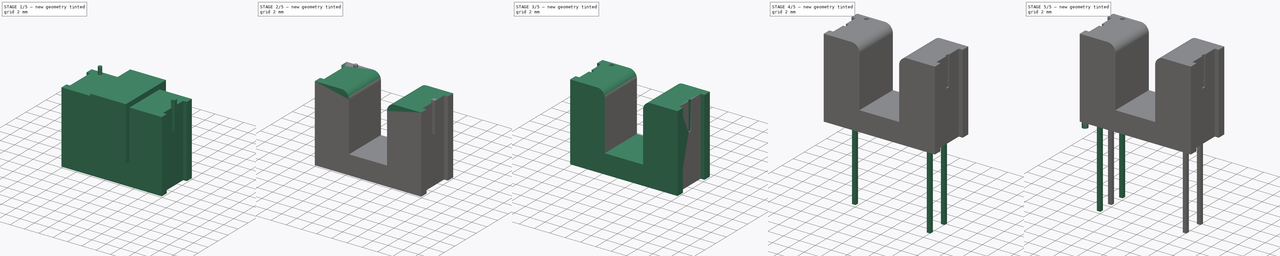
[diagram: build sequence overview — one tinted view per stage of 5, left to right]
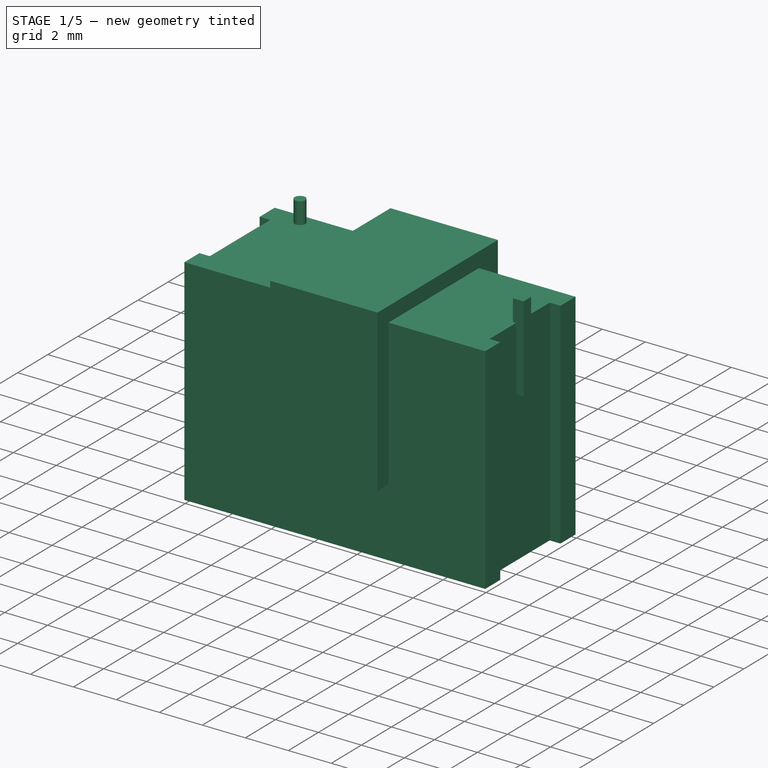
[diagram: stage 1 of 5 — iso view after this stage's code; geometry added in this stage tinted green]
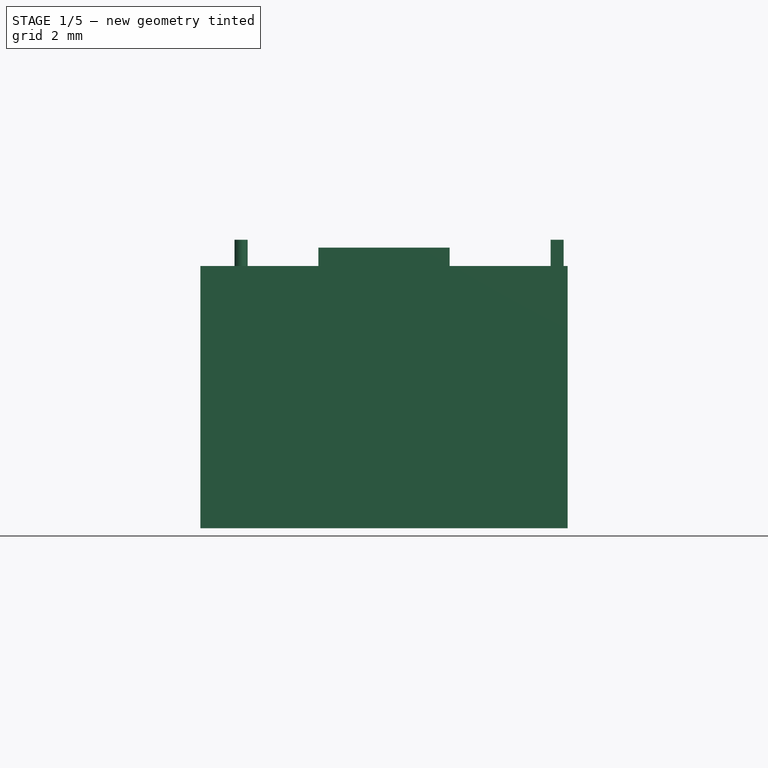
[diagram: stage 1 of 5 — front view after this stage's code; geometry added in this stage tinted green]
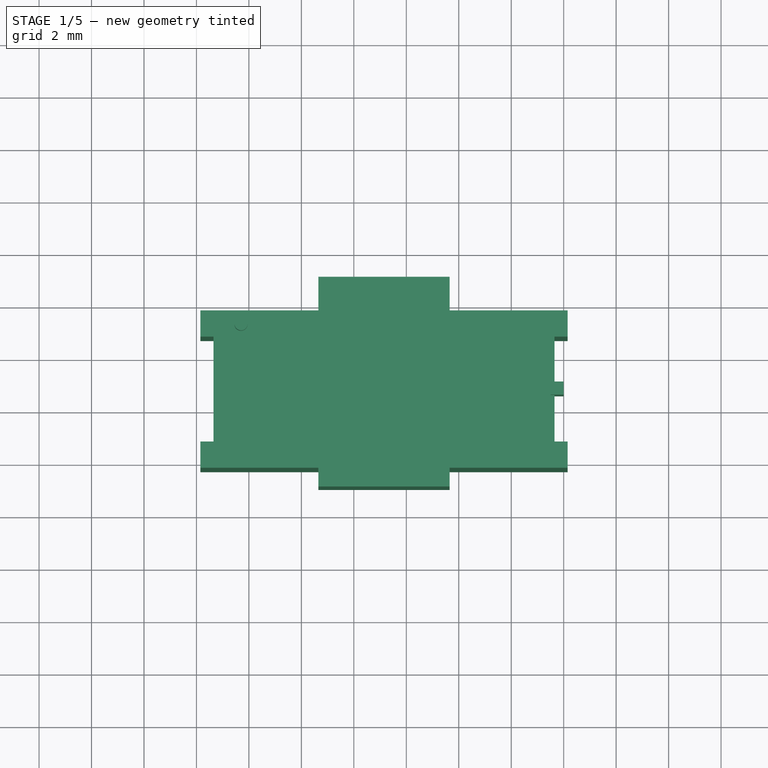
[diagram: stage 1 of 5 — top view after this stage's code; geometry added in this stage tinted green]
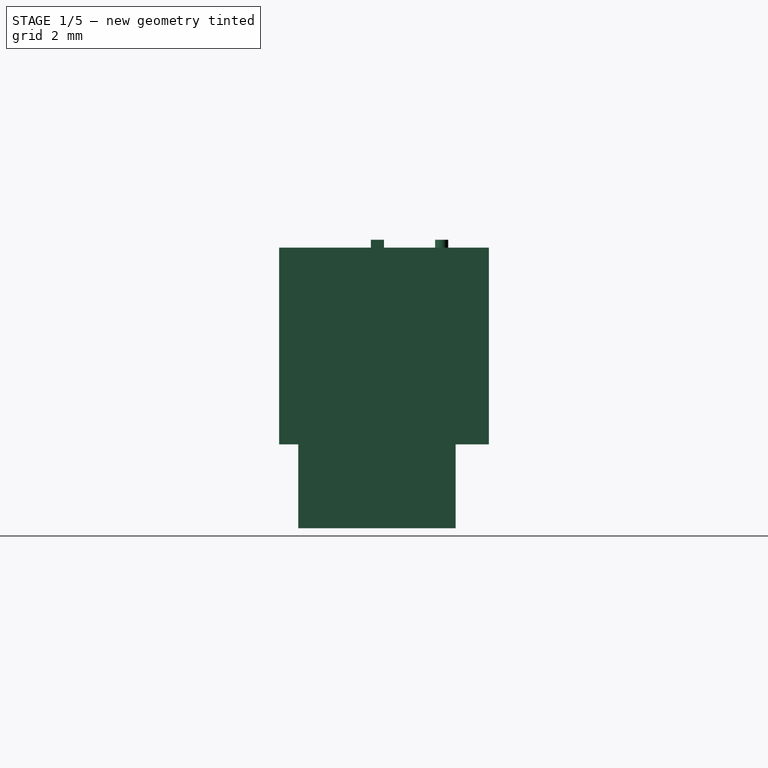
[diagram: stage 1 of 5 — right view after this stage's code; geometry added in this stage tinted green]
FCSTD DOCUMENT  (FreeCAD 0.17R11223 (Git))
Label: LG206D_06
License: All rights reserved
LicenseURL: http://en.wikipedia.org/wiki/All_rights_reserved
objects: Part::Box×8, Part::Cut×4, Part::Cylinder×3, Part::Fillet×2, Sketcher::SketchObject×1, PartDesign::Pad×1, PartDesign::Body×1
note: 21 computed .brp shape members not serialized (recipe doc carries the construction recipe); baked Part::Feature solids carry a one-line shape summary decoded from their .brp

FEATURE [Sketcher::SketchObject] Sketch
  MapMode = 5
  Support = -> [XY_Plane]
  sketch-geometry (12):
    g0: LineSegment StartX=-1.85 StartY=1.73 StartZ=0 EndX=12.15 EndY=1.73 EndZ=0
    g1: LineSegment StartX=12.15 StartY=1.73 StartZ=0 EndX=12.15 EndY=0.73 EndZ=0
    g2: LineSegment StartX=12.15 StartY=0.73 StartZ=0 EndX=11.65 EndY=0.73 EndZ=0
    g3: LineSegment StartX=11.65 StartY=0.73 StartZ=0 EndX=11.65 EndY=-3.27 EndZ=0
    g4: LineSegment StartX=11.65 StartY=-3.27 StartZ=0 EndX=12.15 EndY=-3.27 EndZ=0
    g5: LineSegment StartX=12.15 StartY=-3.27 StartZ=0 EndX=12.15 EndY=-4.27 EndZ=0
    g6: LineSegment StartX=12.15 StartY=-4.27 StartZ=0 EndX=-1.85 EndY=-4.27 EndZ=0
    g7: LineSegment StartX=-1.85 StartY=-4.27 StartZ=0 EndX=-1.85 EndY=-3.27 EndZ=0
    g8: LineSegment StartX=-1.85 StartY=-3.27 StartZ=0 EndX=-1.35 EndY=-3.27 EndZ=0
    g9: LineSegment StartX=-1.35 StartY=-3.27 StartZ=0 EndX=-1.35 EndY=0.73 EndZ=0
    g10: LineSegment StartX=-1.35 StartY=0.73 StartZ=0 EndX=-1.85 EndY=0.73 EndZ=0
    g11: LineSegment StartX=-1.85 StartY=0.73 StartZ=0 EndX=-1.85 EndY=1.73 EndZ=0
  constraints (36):
    c: Horizontal(g0)
    c: Coincident(g0,g1)
    c: Vertical(g1)
    c: Coincident(g1,g2)
    c: Horizontal(g2)
    c: Coincident(g2,g3)
    c: Vertical(g3)
    c: Coincident(g3,g4)
    c: Horizontal(g4)
    c: Coincident(g4,g5)
    c: Vertical(g5)
    c: Coincident(g5,g6)
    c: Horizontal(g6)
    c: Coincident(g6,g7)
    c: Vertical(g7)
    c: Coincident(g7,g8)
    c: Horizontal(g8)
    c: Coincident(g8,g9)
    c: Vertical(g9)
    c: Coincident(g9,g10)
    c: Horizontal(g10)
    c: Coincident(g10,g11)
    c: Coincident(g11,g0)
    c: Vertical(g11)
    c: DistanceX(g0,g0) = 14
    c: DistanceX(g10,g9) = 0.5
    c: DistanceX(g7,g8) = 0.5
    c: DistanceX(g2,g1) = 0.5
    c: DistanceX(g3,g4) = 0.5
    c: DistanceY(g6,g0) = 6
    c: DistanceY(g10,g0) = 1
    c: DistanceY(g6,g7) = 1
    c: DistanceY(g1,g0) = 1
    c: DistanceY(g5,g4) = 1
    c: DistanceX(g0,g-1) = 1.85
    c: DistanceY(g-1,g0) = 1.73
FEATURE [PartDesign::Pad] Pad
  Length = 10
  Length2 = 100
  Offset = 1
  Profile = -> Sketch
  Type = 0
FEATURE [Part::Box] Box005  label="Kub005"
  AttacherType = Attacher::AttachEngine3D
  Height = 7.5
  Length = 5
  Placement = pos=(2.65,-5,3.2) rot=(0,0,1;0rad)
  Width = 8
FEATURE [Part::Box] Box007  label="Kub007"
  AttacherType = Attacher::AttachEngine3D
  Height = 4
  Length = 0.5
  Placement = pos=(11.5,-1.5,7) rot=(0,0,1;0rad)
  Width = 0.5
FEATURE [Part::Cylinder] Cylinder002  label="VCC marking"
  Angle = 360
  AttacherType = Attacher::AttachEngine3D
  Height = 1
  Placement = pos=(-0.3,1.2,10) rot=(0,0,1;0rad)
  Radius = 0.25
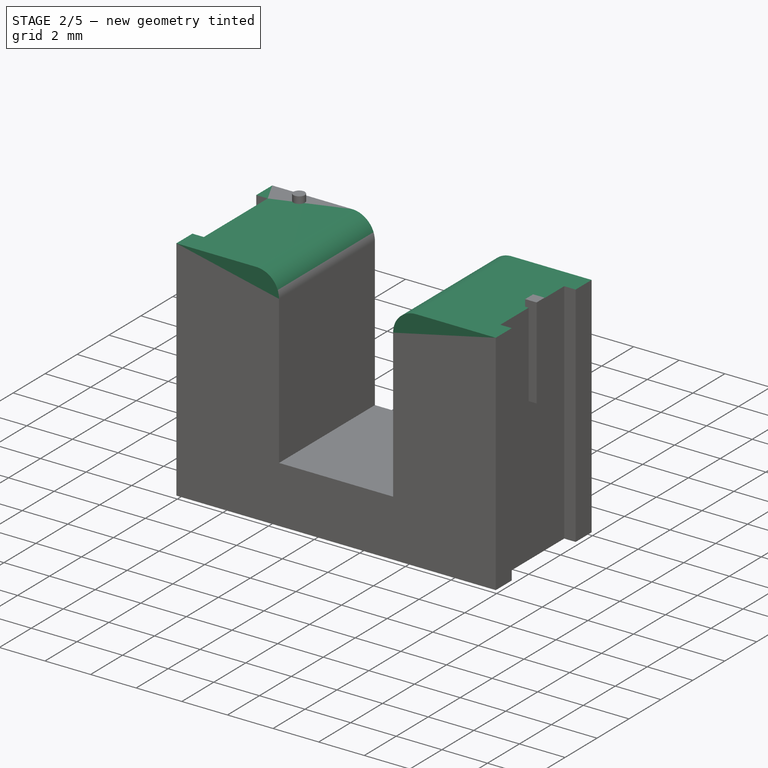
[diagram: stage 2 of 5 — iso view after this stage's code; geometry added in this stage tinted green]
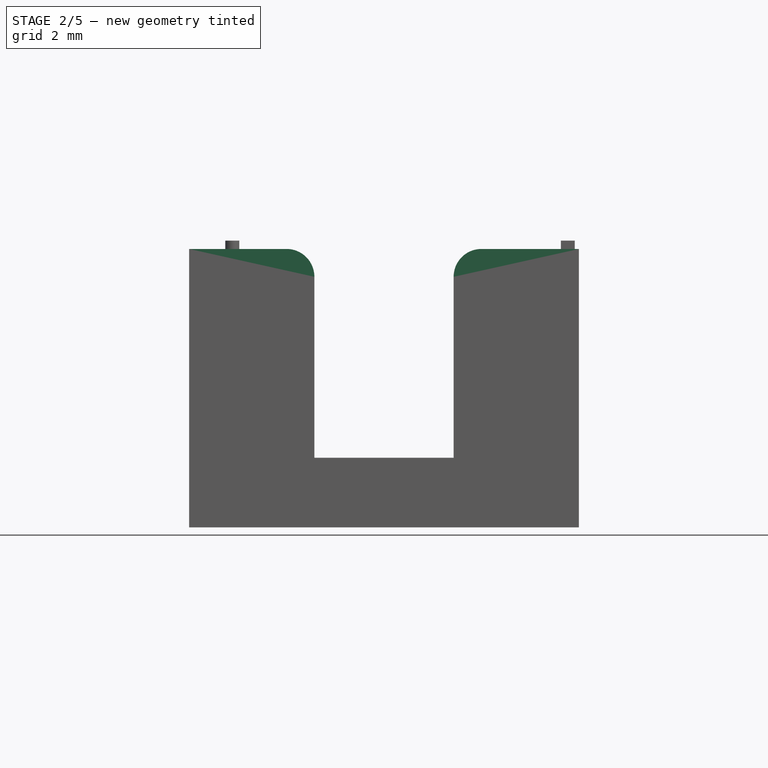
[diagram: stage 2 of 5 — front view after this stage's code; geometry added in this stage tinted green]
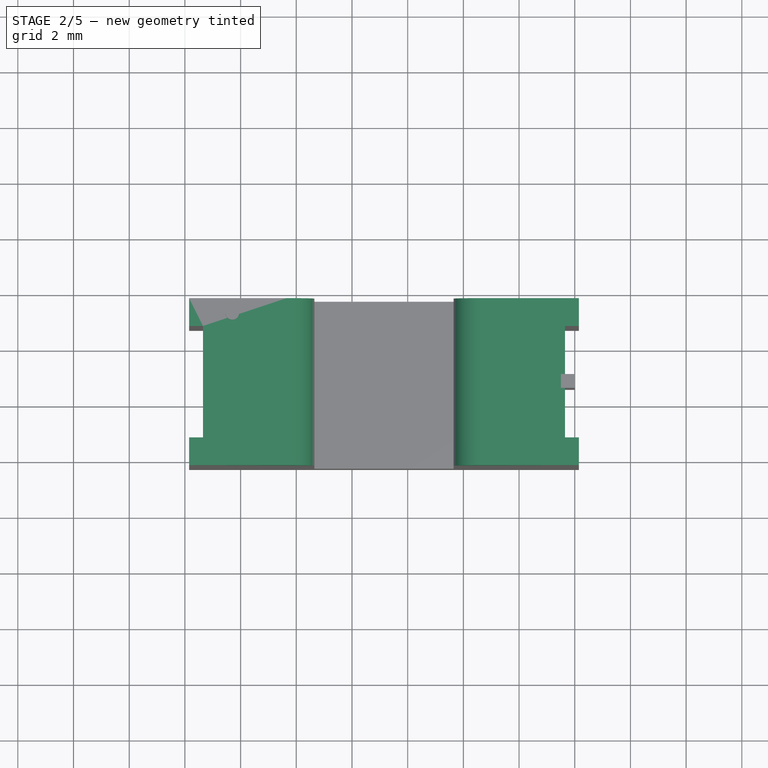
[diagram: stage 2 of 5 — top view after this stage's code; geometry added in this stage tinted green]
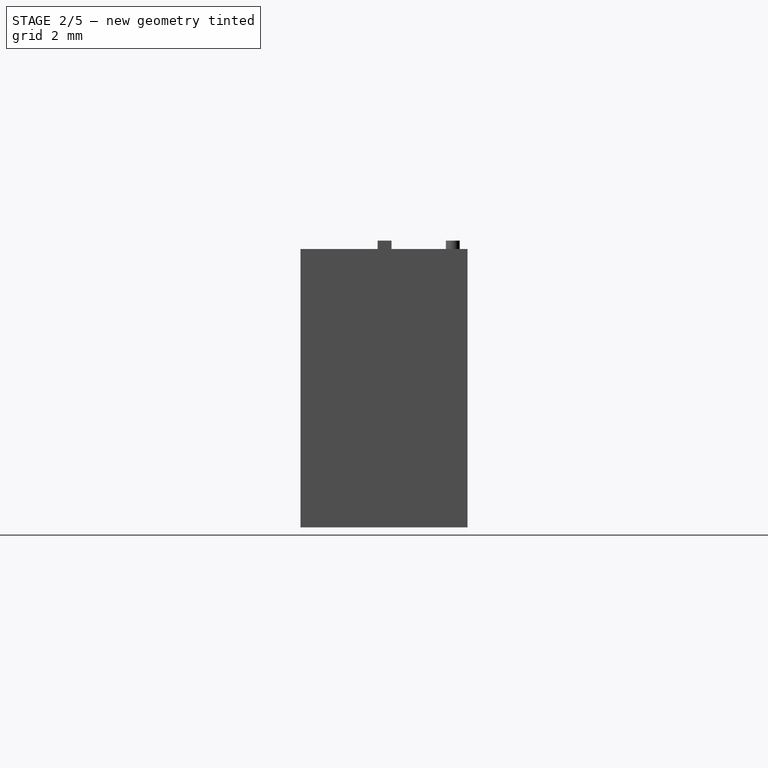
[diagram: stage 2 of 5 — right view after this stage's code; geometry added in this stage tinted green]
FEATURE [Part::Cut] Cut
  Base = -> Body
  Tool = -> Box005
FEATURE [Part::Fillet] Fillet
  Base = -> Cut
  Edges = 1 edges r=1: [Edge22]
FEATURE [Part::Fillet] Fillet001
  Base = -> Fillet
  Edges = 1 edges r=1: [Edge37]
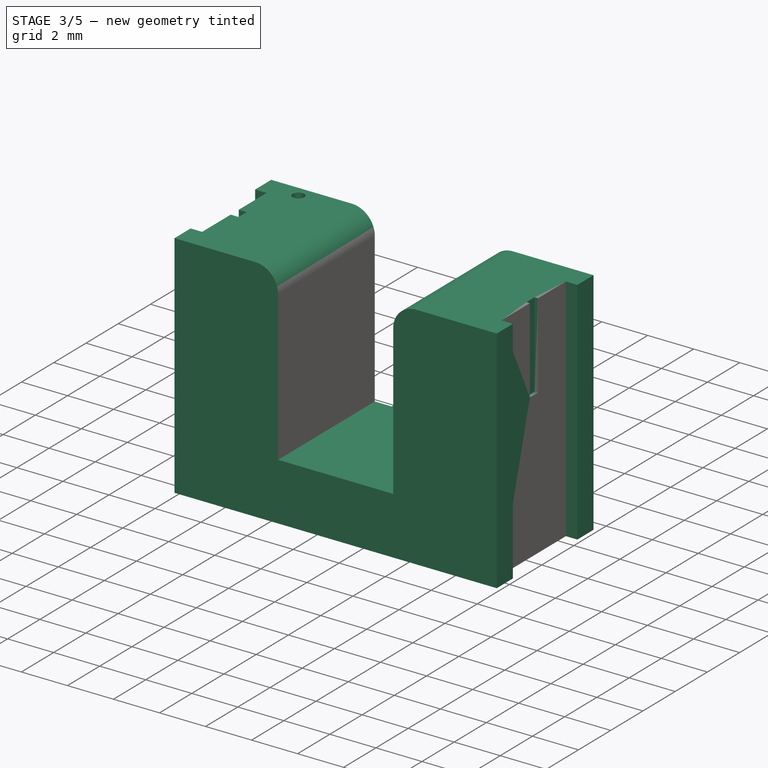
[diagram: stage 3 of 5 — iso view after this stage's code; geometry added in this stage tinted green]
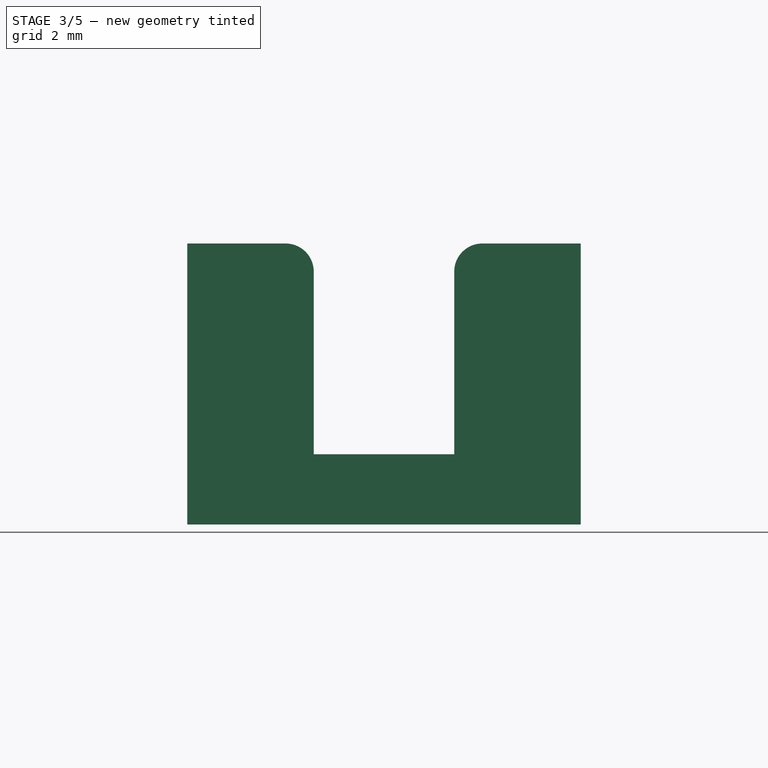
[diagram: stage 3 of 5 — front view after this stage's code; geometry added in this stage tinted green]
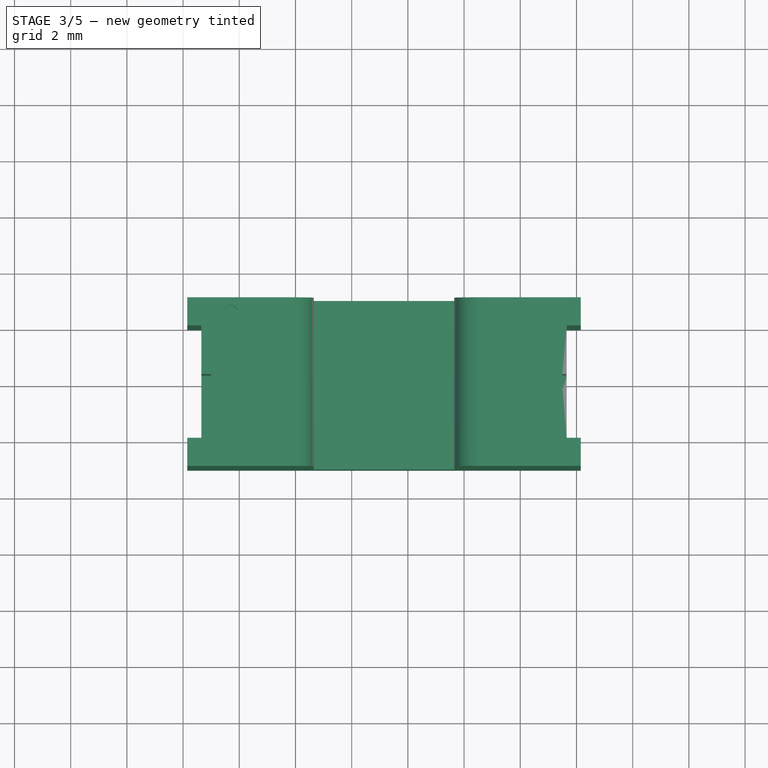
[diagram: stage 3 of 5 — top view after this stage's code; geometry added in this stage tinted green]
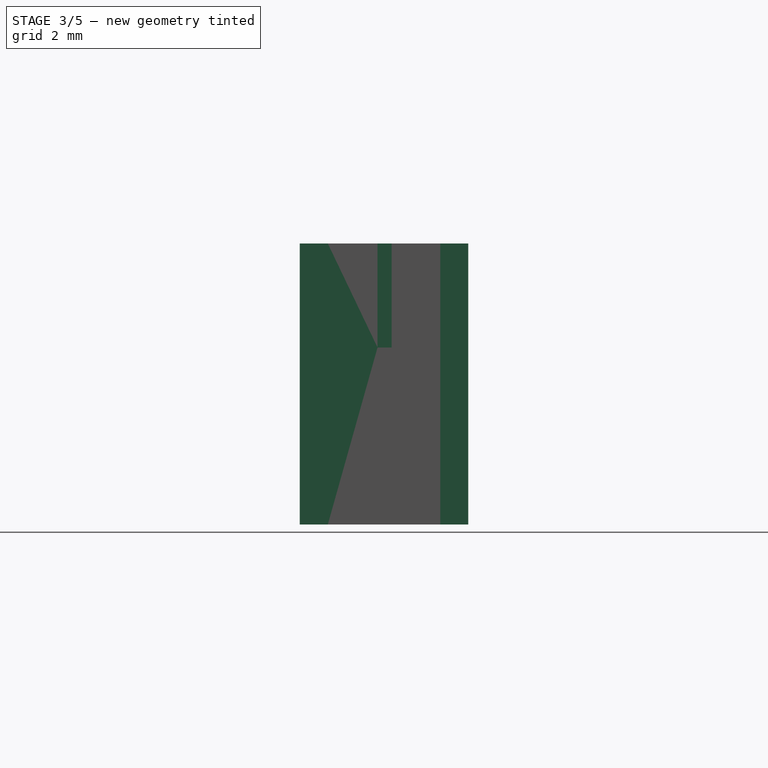
[diagram: stage 3 of 5 — right view after this stage's code; geometry added in this stage tinted green]
FEATURE [Part::Box] Box006  label="Kub006"
  AttacherType = Attacher::AttachEngine3D
  Height = 4
  Length = 0.5
  Placement = pos=(-1.5,-1.5,7) rot=(0,0,1;0rad)
  Width = 0.5
FEATURE [Part::Cut] Cut001
  Base = -> Fillet001
  Tool = -> Box007
FEATURE [Part::Cut] Cut002
  Base = -> Cut001
  Tool = -> Box006
FEATURE [Part::Cut] Cut003
  Base = -> Cut002
  Placement = pos=(0,-0.73,-0.7) rot=(0,0,1;0rad)
  Tool = -> Cylinder002
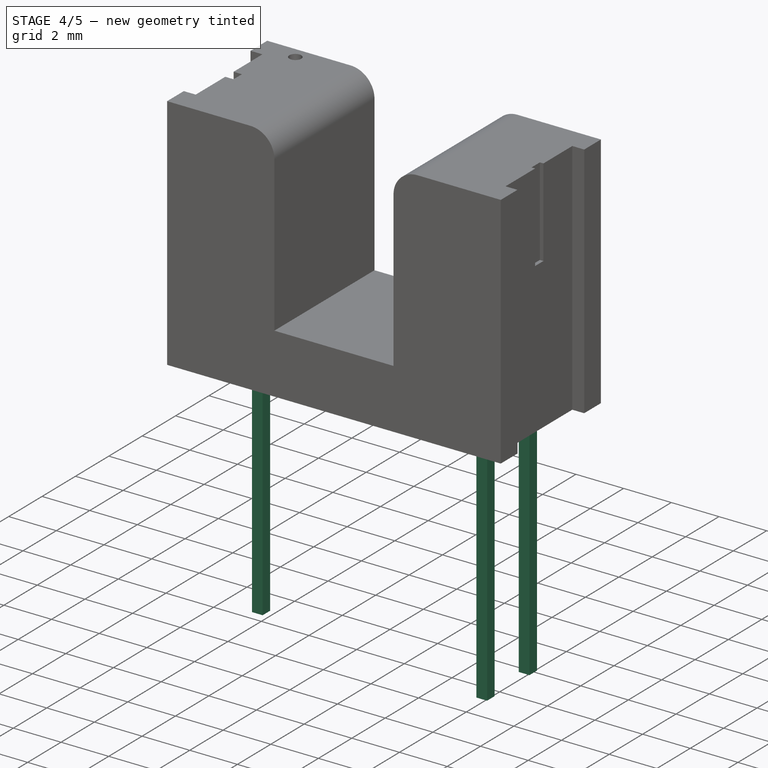
[diagram: stage 4 of 5 — iso view after this stage's code; geometry added in this stage tinted green]
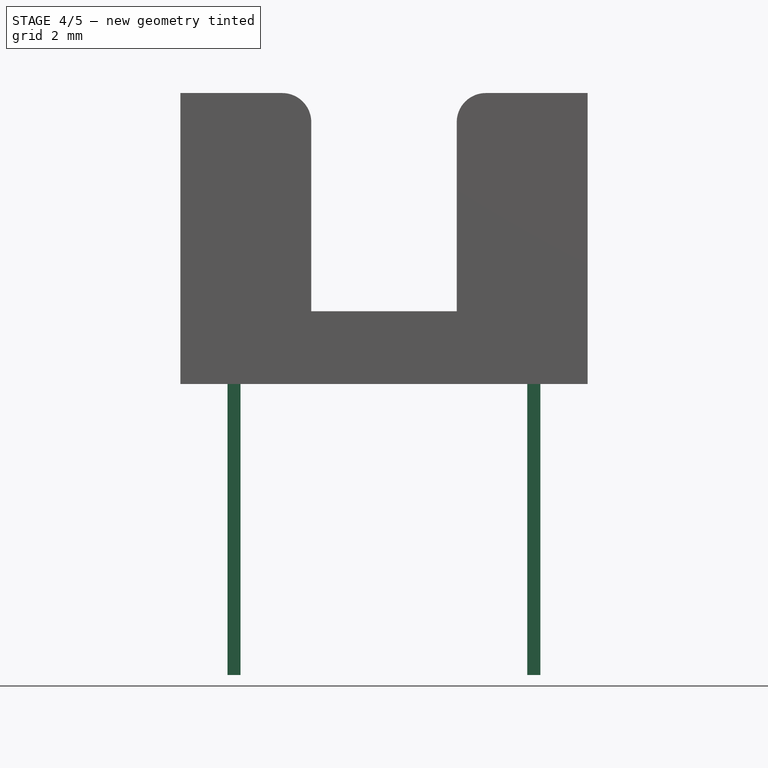
[diagram: stage 4 of 5 — front view after this stage's code; geometry added in this stage tinted green]
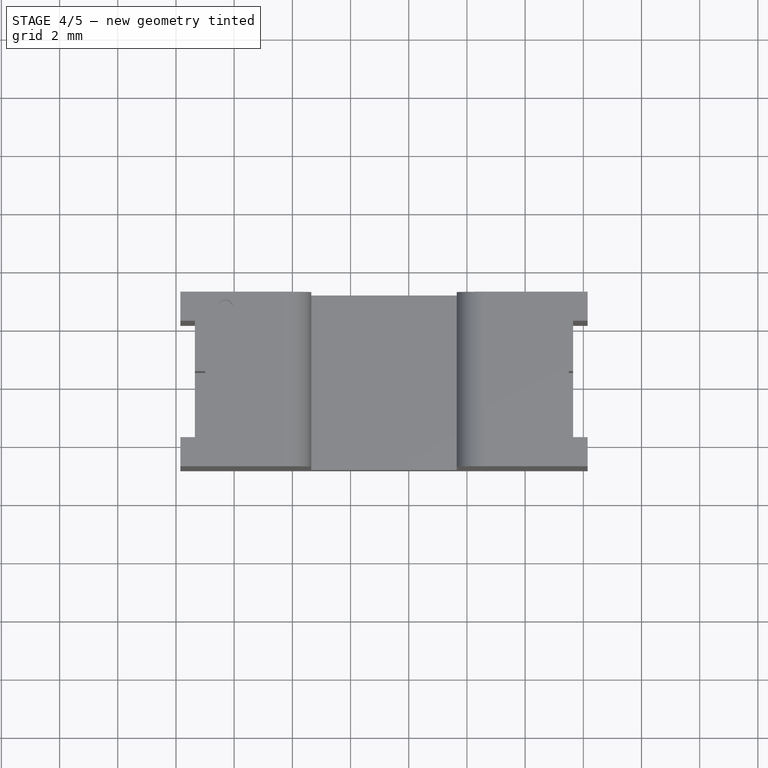
[diagram: stage 4 of 5 — top view after this stage's code; geometry added in this stage tinted green]
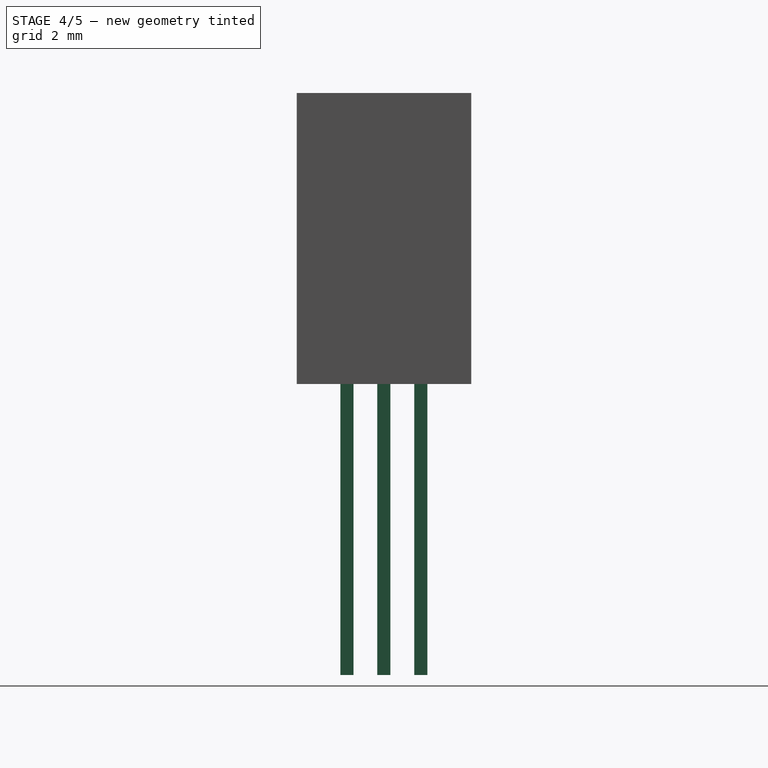
[diagram: stage 4 of 5 — right view after this stage's code; geometry added in this stage tinted green]
FEATURE [Part::Box] Box002  label="Pin005"
  AttacherType = Attacher::AttachEngine3D
  Height = 11
  Length = 0.45
  Placement = pos=(10.075,-0.96,-10) rot=(0,0,1;0rad)
  Width = 0.45
FEATURE [Part::Box] Box003  label="Pin002"
  AttacherType = Attacher::AttachEngine3D
  Height = 11
  Length = 0.45
  Placement = pos=(-0.23,-2.23,-10) rot=(0,0,1;0rad)
  Width = 0.45
FEATURE [Part::Box] Box004  label="Pin004"
  AttacherType = Attacher::AttachEngine3D
  Height = 11
  Length = 0.45
  Placement = pos=(10.075,-3.5,-10) rot=(0,0,1;0rad)
  Width = 0.45
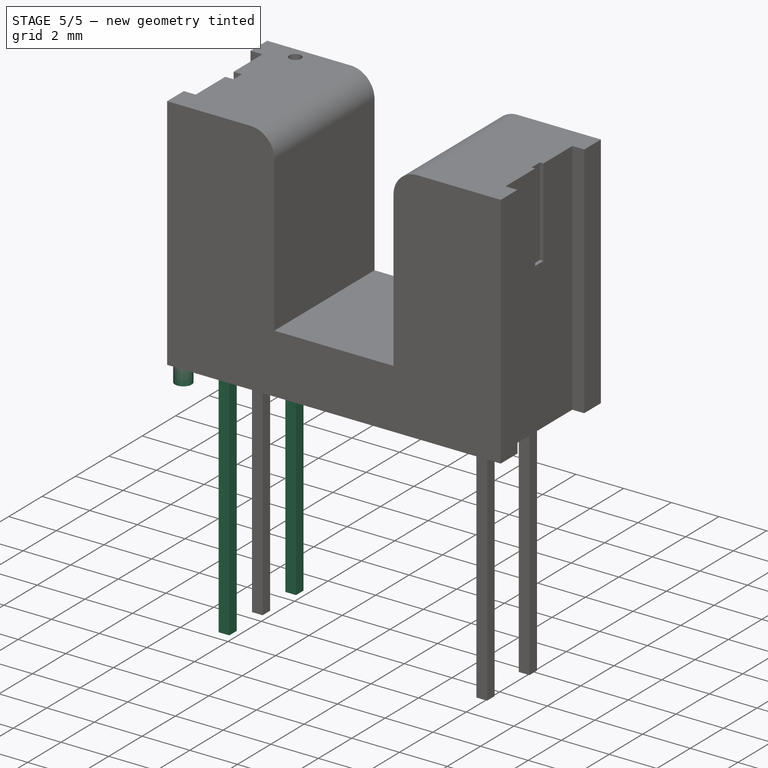
[diagram: stage 5 of 5 — iso view after this stage's code; geometry added in this stage tinted green]
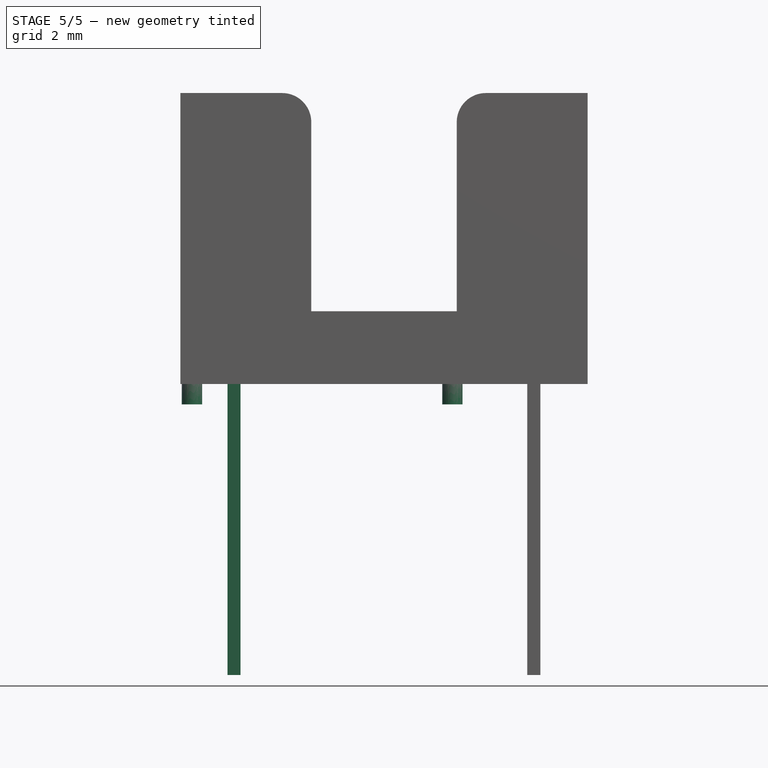
[diagram: stage 5 of 5 — front view after this stage's code; geometry added in this stage tinted green]
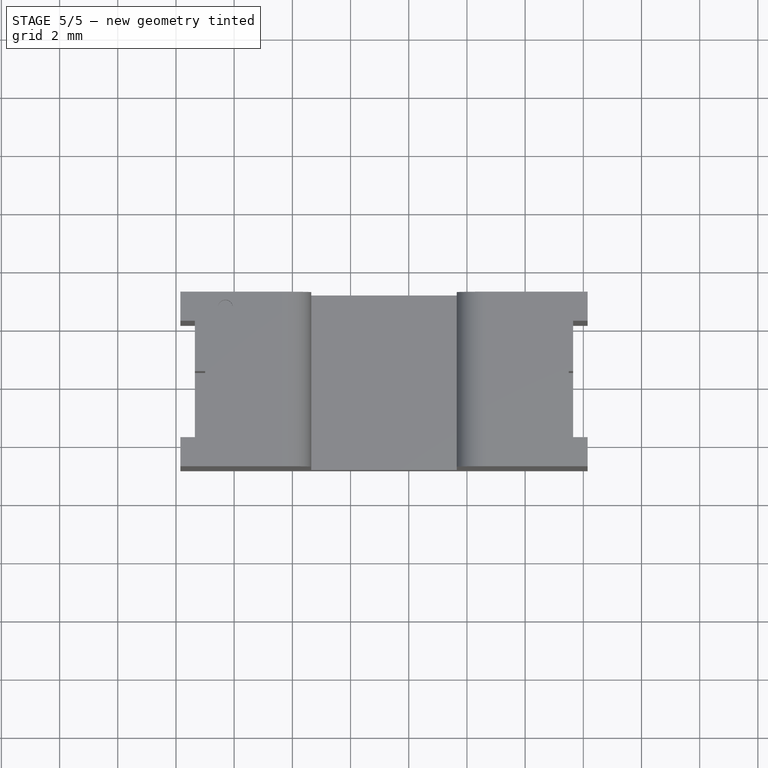
[diagram: stage 5 of 5 — top view after this stage's code; geometry added in this stage tinted green]
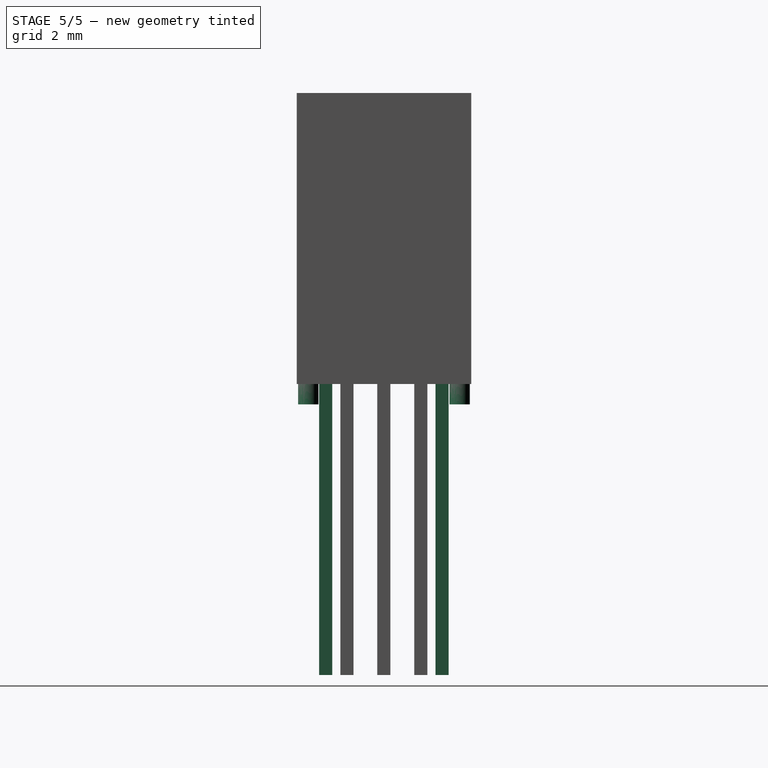
[diagram: stage 5 of 5 — right view after this stage's code; geometry added in this stage tinted green]
FEATURE [PartDesign::Body] Body
  Group = -> [Sketch,Pad]
  Origin = -> BodyOrigin
  Placement = pos=(0,0,0.7) rot=(0,0,1;0rad)
  Tip = -> Pad
FEATURE [Part::Cylinder] Cylinder  label="Support_beneath002"
  Angle = 360
  AttacherType = Attacher::AttachEngine3D
  Height = 1
  Placement = pos=(-1.45,-4.6,-0.7) rot=(0,0,1;0rad)
  Radius = 0.35
FEATURE [Part::Cylinder] Cylinder001  label="Support_beneath001"
  Angle = 360
  AttacherType = Attacher::AttachEngine3D
  Height = 1
  Placement = pos=(7.5,0.6,-0.7) rot=(0,0,1;0rad)
  Radius = 0.35
FEATURE [Part::Box] Box  label="Pin001"
  AttacherType = Attacher::AttachEngine3D
  Height = 11
  Length = 0.45
  Placement = pos=(-0.23,-0.23,-10) rot=(0,0,1;0rad)
  Width = 0.45
FEATURE [Part::Box] Box001  label="Pin003"
  AttacherType = Attacher::AttachEngine3D
  Height = 11
  Length = 0.45
  Placement = pos=(-0.23,-4.23,-10) rot=(0,0,1;0rad)
  Width = 0.45
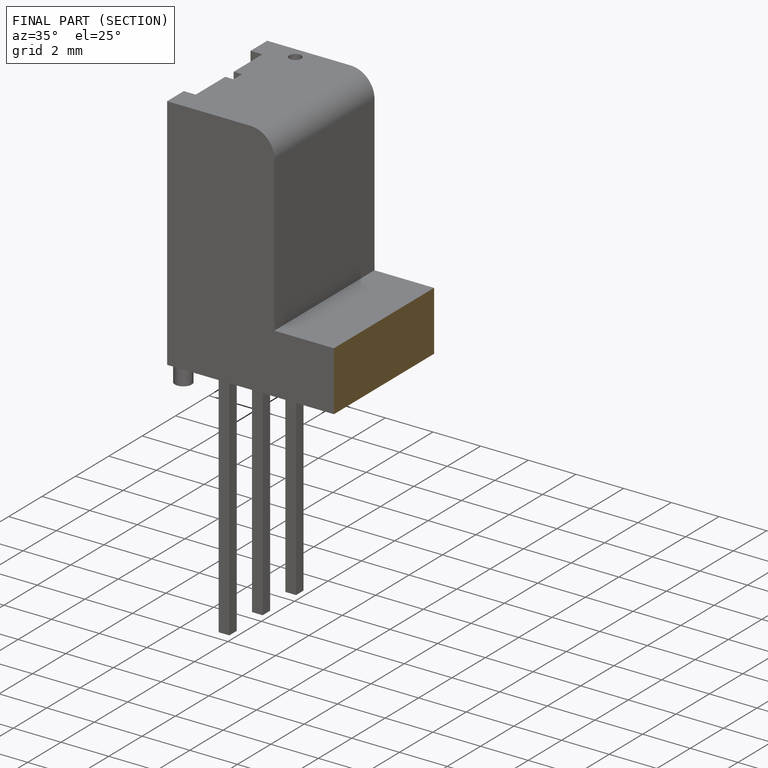
[diagram: finished part — half-section view (interior)]
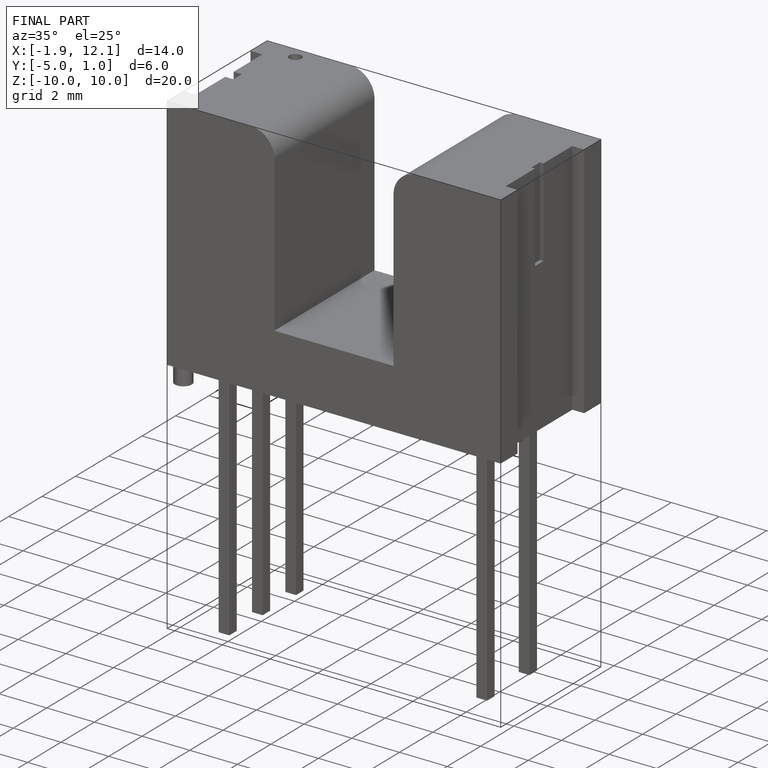
[diagram: finished part — iso view with bounding-box wireframe]
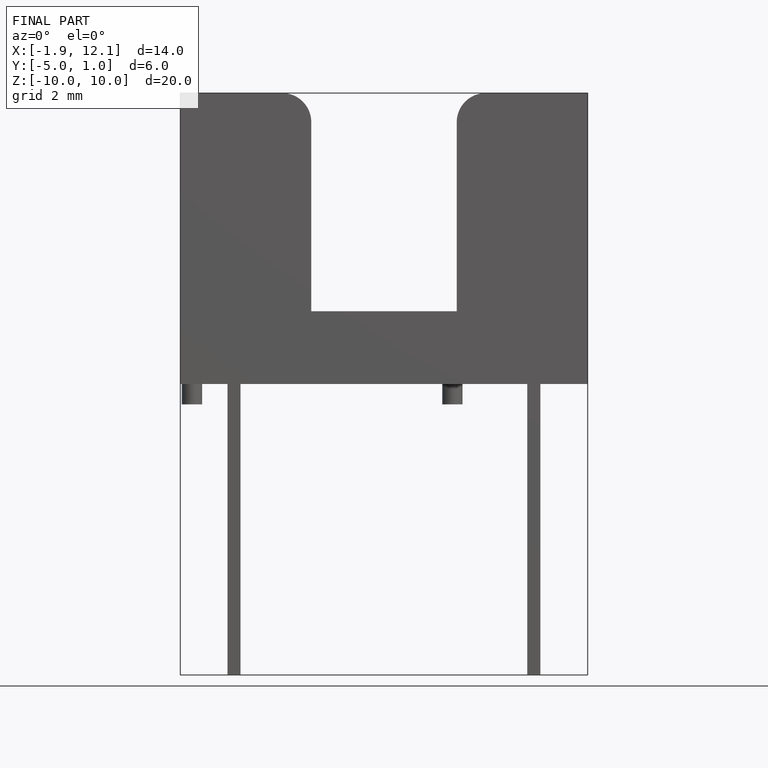
[diagram: finished part — front view with bounding-box wireframe]
